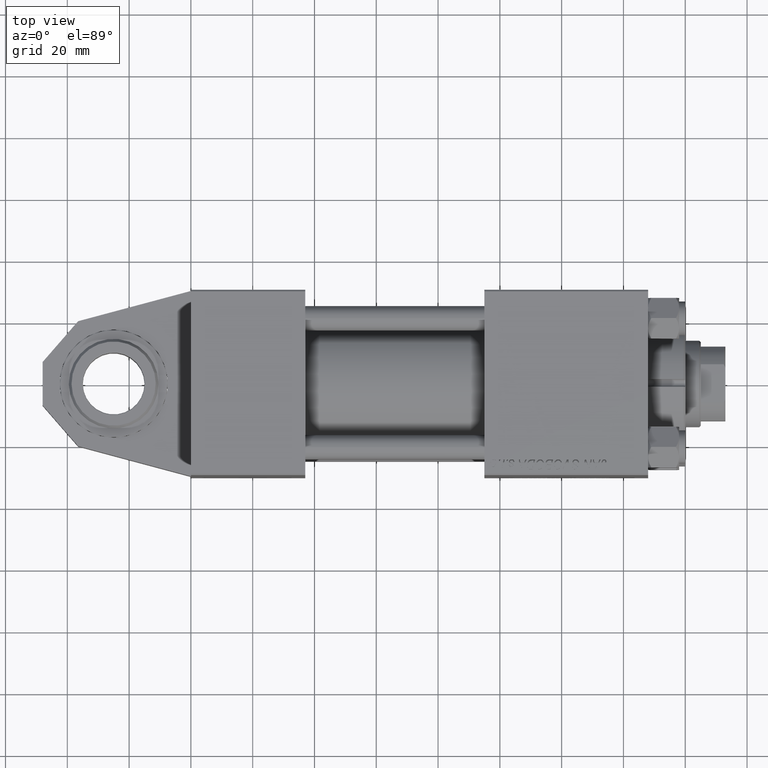
[diagram: clean part render]
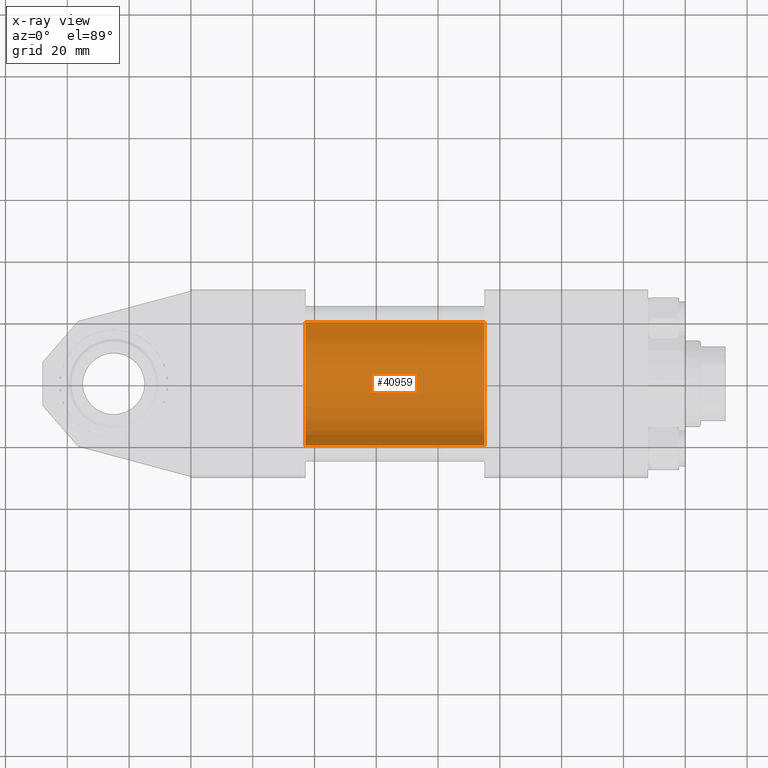
[diagram: x-ray — body ghosted, one internal face saturated and labeled with its STEP entity id]
A machine part, top view, then the same camera in x-ray: the body is ghosted and one INTERNAL B-rep face — a face not visible from any outside direction — is saturated and labeled: STEP entity #40959.
In plain terms, the highlighted cylindrical surface (partial cylindrical patch) has radius 20 mm, axis along (-1, 0, -0).
Its self-contained STEP definition (entity closure, byte-faithful):
#142 = DIRECTION ( 'NONE',  ( -1.000000000000000000, -0.000000000000000000, -0.000000000000000000 ) ) ;
#628 = CARTESIAN_POINT ( 'NONE',  ( 95.00000000000000000, -2.602085213965210642E-15, 0.000000000000000000 ) ) ;
#779 = DIRECTION ( 'NONE',  ( 0.000000000000000000, 0.000000000000000000, -1.000000000000000000 ) ) ;
#3362 = LINE ( 'NONE', #42041, #11739 ) ;
#4429 = DIRECTION ( 'NONE',  ( -1.000000000000000000, -0.000000000000000000, -0.000000000000000000 ) ) ;
#4483 = DIRECTION ( 'NONE',  ( 0.000000000000000000, 0.000000000000000000, -1.000000000000000000 ) ) ;
#5664 = EDGE_CURVE ( 'NONE', #22539, #6347, #32347, .T. ) ;
#6347 = VERTEX_POINT ( 'NONE', #32451 ) ;
#9056 = CARTESIAN_POINT ( 'NONE',  ( 95.00000000000000000, -2.602085213965210642E-15, 0.000000000000000000 ) ) ;
#10434 = AXIS2_PLACEMENT_3D ( 'NONE', #36158, #35643, #779 ) ;
#11739 = VECTOR ( 'NONE', #26261, 1000.000000000000000 ) ;
#11861 = CARTESIAN_POINT ( 'NONE',  ( 95.00000000000000000, -2.602085213965210642E-15, 20.00000000000000000 ) ) ;
#12805 = CARTESIAN_POINT ( 'NONE',  ( 95.00000000000000000, -2.602085213965210642E-15, 20.00000000000000000 ) ) ;
#12816 = CARTESIAN_POINT ( 'NONE',  ( 37.00000000000000000, -2.602085213965210642E-15, 20.00000000000000000 ) ) ;
#12985 = CARTESIAN_POINT ( 'NONE',  ( 95.00000000000000000, -1.527916156705046464E-16, -20.00000000000000000 ) ) ;
#19566 = EDGE_CURVE ( 'NONE', #45336, #46832, #25094, .T. ) ;
#22539 = VERTEX_POINT ( 'NONE', #12816 ) ;
#25094 = CIRCLE ( 'NONE', #38122, 20.00000000000000000 ) ;
#26261 = DIRECTION ( 'NONE',  ( -1.000000000000000000, -0.000000000000000000, -0.000000000000000000 ) ) ;
#32347 = CIRCLE ( 'NONE', #10434, 20.00000000000000000 ) ;
#32451 = CARTESIAN_POINT ( 'NONE',  ( 37.00000000000000000, -1.527916156705046464E-16, -20.00000000000000000 ) ) ;
#32771 = VECTOR ( 'NONE', #4429, 1000.000000000000000 ) ;
#34758 = CYLINDRICAL_SURFACE ( 'NONE', #36136, 20.00000000000000000 ) ;
#35008 = DIRECTION ( 'NONE',  ( 0.000000000000000000, 0.000000000000000000, 1.000000000000000000 ) ) ;
#35280 = DIRECTION ( 'NONE',  ( 1.000000000000000000, 0.000000000000000000, 0.000000000000000000 ) ) ;
#35501 = FACE_OUTER_BOUND ( 'NONE', #50292, .T. ) ;
#35643 = DIRECTION ( 'NONE',  ( 1.000000000000000000, 0.000000000000000000, 0.000000000000000000 ) ) ;
#35844 = ORIENTED_EDGE ( 'NONE', *, *, #5664, .F. ) ;
#36136 = AXIS2_PLACEMENT_3D ( 'NONE', #628, #142, #35008 ) ;
#36158 = CARTESIAN_POINT ( 'NONE',  ( 37.00000000000000000, -2.602085213965210642E-15, 0.000000000000000000 ) ) ;
#36613 = EDGE_CURVE ( 'NONE', #46832, #6347, #3362, .T. ) ;
#38122 = AXIS2_PLACEMENT_3D ( 'NONE', #9056, #35280, #4483 ) ;
#39452 = ORIENTED_EDGE ( 'NONE', *, *, #49299, .F. ) ;
#40055 = ORIENTED_EDGE ( 'NONE', *, *, #19566, .T. ) ;
#40959 = ADVANCED_FACE ( 'NONE', ( #35501 ), #34758, .F. ) ;
#42041 = CARTESIAN_POINT ( 'NONE',  ( 95.00000000000000000, -1.527916156705046464E-16, -20.00000000000000000 ) ) ;
#44118 = ORIENTED_EDGE ( 'NONE', *, *, #36613, .T. ) ;
#45336 = VERTEX_POINT ( 'NONE', #11861 ) ;
#46832 = VERTEX_POINT ( 'NONE', #12985 ) ;
#47168 = LINE ( 'NONE', #12805, #32771 ) ;
#49299 = EDGE_CURVE ( 'NONE', #45336, #22539, #47168, .T. ) ;
#50292 = EDGE_LOOP ( 'NONE', ( #40055, #44118, #35844, #39452 ) ) ;